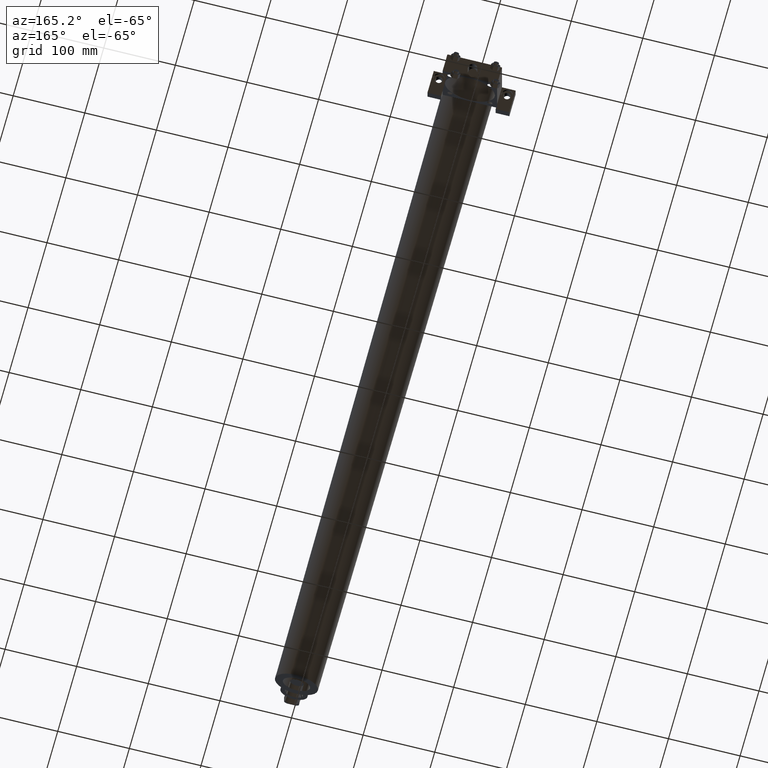
[diagram: clean part render]
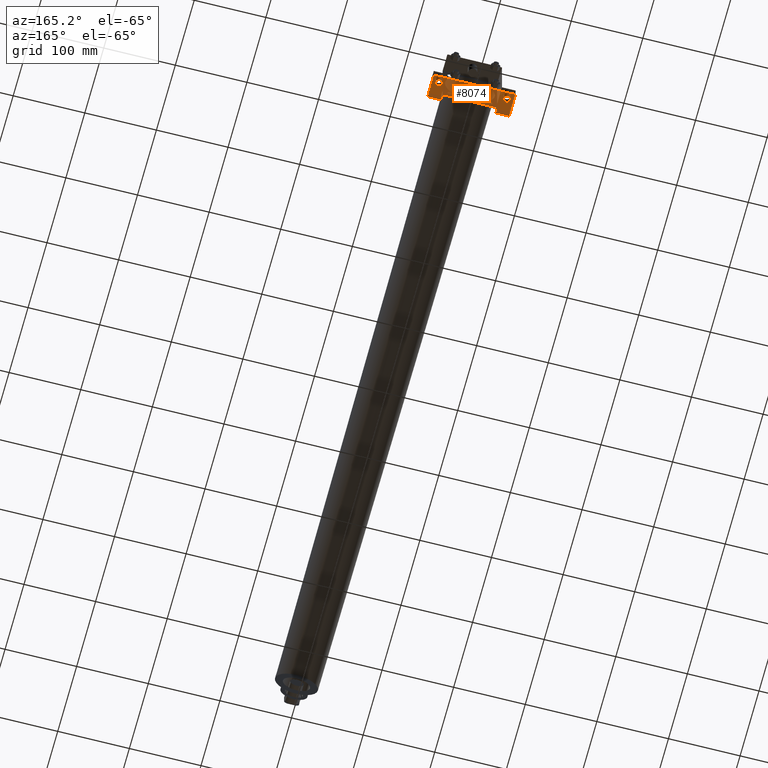
[diagram: same view with one face highlighted and labeled with its STEP entity id]
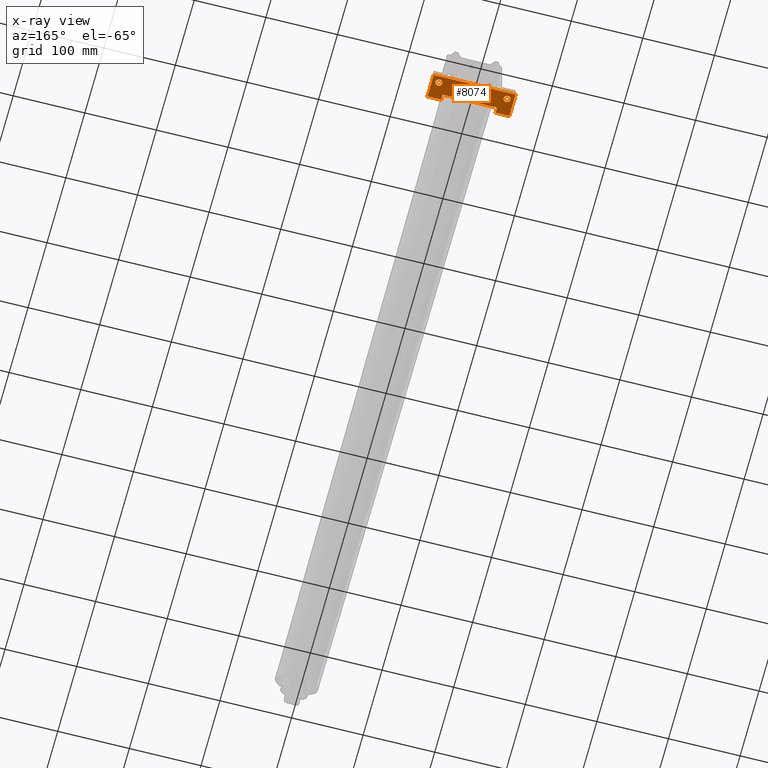
[diagram: x-ray of the same camera — body ghosted, the highlighted face saturated]
A machine part, auxiliary view. The second image highlights one B-rep face of the part: STEP entity #8074.
The next image is the same camera in x-ray: the body ghosted, the highlighted face saturated — about 0% of this face is hidden behind the body in this view.
In plain terms, the highlighted planar face has unit normal (0, 0, 1).
Its self-contained STEP definition (entity closure, byte-faithful):
#2618=EDGE_CURVE('',#2624,#2624,#2619,.T.);
#2619=CIRCLE('',#2620,2.778125000E+000);
#2620=AXIS2_PLACEMENT_3D('',#2621,#2622,#2623);
#2621=CARTESIAN_POINT('',(0.000000000E+000,9.604375000E+002,-3.810000000E+001));
#2622=DIRECTION('',(0.0E+000,0.0E+000,1.0E+000));
#2623=DIRECTION('',(1.0E+000,0.0E+000,0.0E+000));
#2624=VERTEX_POINT('',#2625);
#2625=CARTESIAN_POINT('',(2.778125000E+000,9.604375000E+002,-3.810000000E+001));
#2725=EDGE_CURVE('',#2731,#2731,#2726,.T.);
#2726=CIRCLE('',#2727,4.762500000E+000);
#2727=AXIS2_PLACEMENT_3D('',#2728,#2729,#2730);
#2728=CARTESIAN_POINT('',(-4.762500000E+001,9.588500000E+002,-3.810000000E+001));
#2729=DIRECTION('',(0.0E+000,0.0E+000,1.0E+000));
#2730=DIRECTION('',(1.0E+000,0.0E+000,0.0E+000));
#2731=VERTEX_POINT('',#2732);
#2732=CARTESIAN_POINT('',(-4.286250000E+001,9.588500000E+002,-3.810000000E+001));
#2790=EDGE_CURVE('',#2796,#2796,#2791,.T.);
#2791=CIRCLE('',#2792,4.762500000E+000);
#2792=AXIS2_PLACEMENT_3D('',#2793,#2794,#2795);
#2793=CARTESIAN_POINT('',(4.762500000E+001,9.588500000E+002,-3.810000000E+001));
#2794=DIRECTION('',(0.0E+000,0.0E+000,1.0E+000));
#2795=DIRECTION('',(1.0E+000,0.0E+000,0.0E+000));
#2796=VERTEX_POINT('',#2797);
#2797=CARTESIAN_POINT('',(5.238750000E+001,9.588500000E+002,-3.810000000E+001));
#2804=FACE_OUTER_BOUND('',#2808,.T.);
#2805=FACE_BOUND('',#2809,.T.);
#2806=FACE_BOUND('',#2810,.T.);
#2807=FACE_BOUND('',#2811,.T.);
#2808=EDGE_LOOP('',(#2812));
#2809=EDGE_LOOP('',(#2813));
#2810=EDGE_LOOP('',(#2814));
#2811=EDGE_LOOP('',(#2815,#2816,#2817,#2818,#2819,#2820,#2821,#2822));
#2812=ORIENTED_EDGE('',*,*,#2618,.T.);
#2813=ORIENTED_EDGE('',*,*,#2725,.T.);
#2814=ORIENTED_EDGE('',*,*,#2790,.T.);
#2815=ORIENTED_EDGE('',*,*,#2823,.T.);
#2816=ORIENTED_EDGE('',*,*,#2832,.T.);
#2817=ORIENTED_EDGE('',*,*,#2839,.T.);
#2818=ORIENTED_EDGE('',*,*,#2846,.F.);
#2819=ORIENTED_EDGE('',*,*,#2853,.F.);
#2820=ORIENTED_EDGE('',*,*,#2860,.T.);
#2821=ORIENTED_EDGE('',*,*,#2863,.F.);
#2822=ORIENTED_EDGE('',*,*,#2870,.T.);
#2823=EDGE_CURVE('',#2828,#2829,#2824,.T.);
#2824=LINE('',#2825,#2826);
#2825=CARTESIAN_POINT('',(-3.810000000E+001,9.683750000E+002,-3.810000000E+001));
#2826=VECTOR('',#2827,1.0E+000);
#2827=DIRECTION('',(0.0E+000,-1.0E+000,0.0E+000));
#2828=VERTEX_POINT('',#2830);
#2829=VERTEX_POINT('',#2831);
#2830=CARTESIAN_POINT('',(-3.810000000E+001,9.429750000E+002,-3.810000000E+001));
#2831=CARTESIAN_POINT('',(-3.810000000E+001,9.350375000E+002,-3.810000000E+001));
#2832=EDGE_CURVE('',#2829,#2837,#2833,.T.);
#2833=LINE('',#2834,#2835);
#2834=CARTESIAN_POINT('',(5.715000000E+001,9.350375000E+002,-3.810000000E+001));
#2835=VECTOR('',#2836,1.0E+000);
#2836=DIRECTION('',(-1.0E+000,0.0E+000,0.0E+000));
#2837=VERTEX_POINT('',#2838);
#2838=CARTESIAN_POINT('',(-5.715000000E+001,9.350375000E+002,-3.810000000E+001));
#2839=EDGE_CURVE('',#2837,#2844,#2840,.T.);
#2840=LINE('',#2841,#2842);
#2841=CARTESIAN_POINT('',(-5.715000000E+001,9.350375000E+002,-3.810000000E+001));
#2842=VECTOR('',#2843,1.0E+000);
#2843=DIRECTION('',(0.0E+000,1.0E+000,0.0E+000));
#2844=VERTEX_POINT('',#2845);
#2845=CARTESIAN_POINT('',(-5.715000000E+001,9.683750000E+002,-3.810000000E+001));
#2846=EDGE_CURVE('',#2851,#2844,#2847,.T.);
#2847=LINE('',#2848,#2849);
#2848=CARTESIAN_POINT('',(3.810000000E+001,9.683750000E+002,-3.810000000E+001));
#2849=VECTOR('',#2850,1.0E+000);
#2850=DIRECTION('',(-1.0E+000,0.0E+000,0.0E+000));
#2851=VERTEX_POINT('',#2852);
#2852=CARTESIAN_POINT('',(5.715000000E+001,9.683750000E+002,-3.810000000E+001));
#2853=EDGE_CURVE('',#2858,#2851,#2854,.T.);
#2854=LINE('',#2855,#2856);
#2855=CARTESIAN_POINT('',(5.715000000E+001,9.350375000E+002,-3.810000000E+001));
#2856=VECTOR('',#2857,1.0E+000);
#2857=DIRECTION('',(0.0E+000,1.0E+000,0.0E+000));
#2858=VERTEX_POINT('',#2859);
#2859=CARTESIAN_POINT('',(5.715000000E+001,9.350375000E+002,-3.810000000E+001));
#2860=EDGE_CURVE('',#2858,#2861,#2833,.T.);
#2861=VERTEX_POINT('',#2862);
#2862=CARTESIAN_POINT('',(3.810000000E+001,9.350375000E+002,-3.810000000E+001));
#2863=EDGE_CURVE('',#2868,#2861,#2864,.T.);
#2864=LINE('',#2865,#2866);
#2865=CARTESIAN_POINT('',(3.810000000E+001,9.683750000E+002,-3.810000000E+001));
#2866=VECTOR('',#2867,1.0E+000);
#2867=DIRECTION('',(0.0E+000,-1.0E+000,0.0E+000));
#2868=VERTEX_POINT('',#2869);
#2869=CARTESIAN_POINT('',(3.810000000E+001,9.429750000E+002,-3.810000000E+001));
#2870=EDGE_CURVE('',#2868,#2828,#2871,.T.);
#2871=LINE('',#2872,#2873);
#2872=CARTESIAN_POINT('',(3.810000000E+001,9.429750000E+002,-3.810000000E+001));
#2873=VECTOR('',#2874,1.0E+000);
#2874=DIRECTION('',(-1.0E+000,0.0E+000,0.0E+000));
#2875=PLANE('',#2876);
#2876=AXIS2_PLACEMENT_3D('',#2877,#2878,#2879);
#2877=CARTESIAN_POINT('',(5.715000000E+001,9.683750000E+002,-3.810000000E+001));
#2878=DIRECTION('',(0.0E+000,0.0E+000,1.0E+000));
#2879=DIRECTION('',(1.0E+000,0.0E+000,0.0E+000));
#8074=ADVANCED_FACE('',(#2804,#2805,#2806,#2807),#2875,.F.);